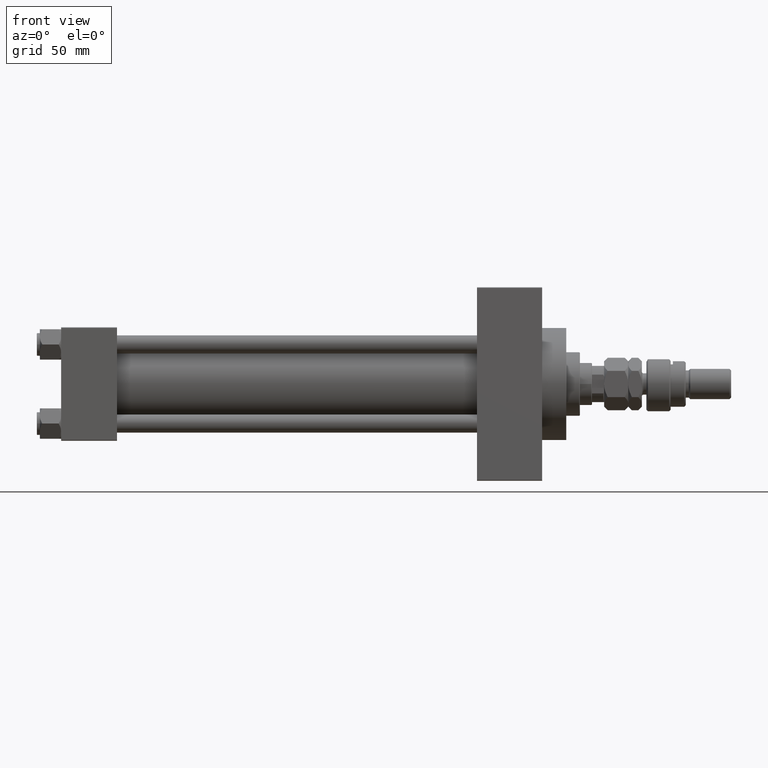
[diagram: clean part render]
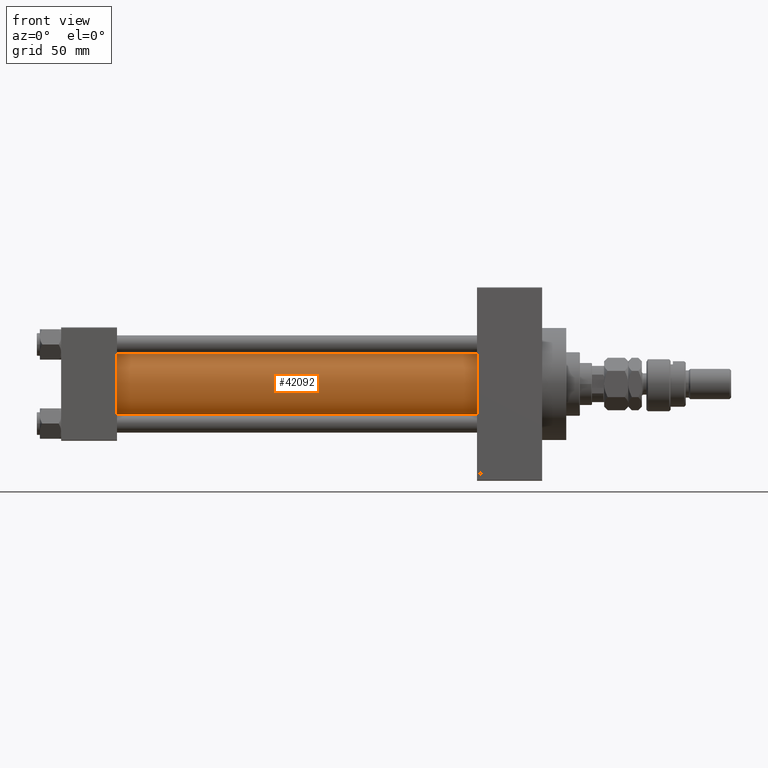
[diagram: same view with one face highlighted and labeled with its STEP entity id]
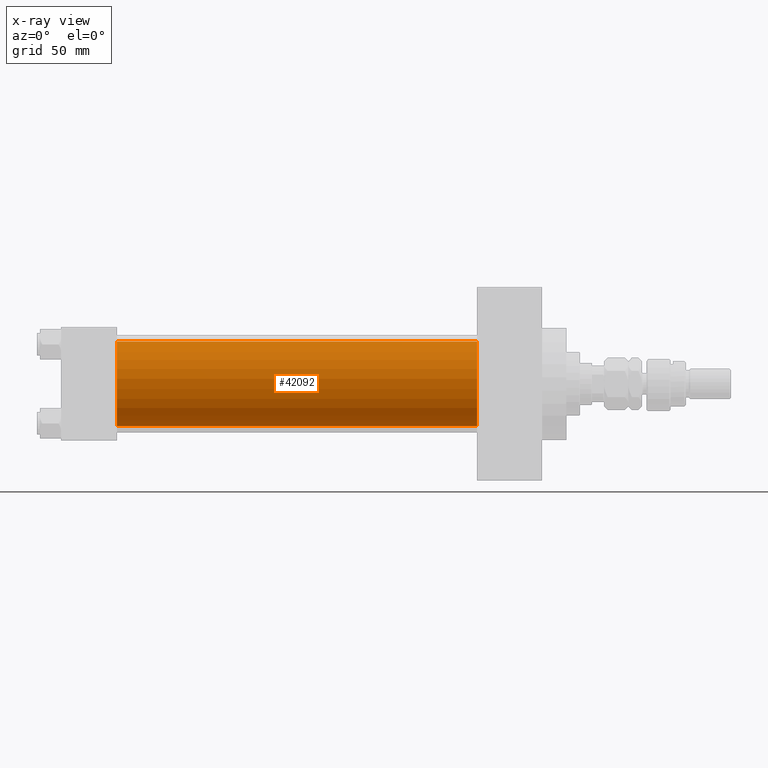
[diagram: x-ray of the same camera — body ghosted, the highlighted face saturated]
A machine part, front view. The second image highlights one B-rep face of the part: STEP entity #42092.
The next image is the same camera in x-ray: the body ghosted, the highlighted face saturated — about 0% of this face is hidden behind the body in this view.
In plain terms, the highlighted cylindrical surface (partial cylindrical patch) has radius 28 mm, axis along (-1, -0, -0).
Its self-contained STEP definition (entity closure, byte-faithful):
#1734 = AXIS2_PLACEMENT_3D ( 'NONE', #19188, #35322, #15211 ) ;
#2998 = CYLINDRICAL_SURFACE ( 'NONE', #1734, 28.00000000000000000 ) ;
#3715 = VECTOR ( 'NONE', #43896, 1000.000000000000000 ) ;
#4535 = LINE ( 'NONE', #24694, #23617 ) ;
#4807 = DIRECTION ( 'NONE',  ( 0.000000000000000000, 0.000000000000000000, -1.000000000000000000 ) ) ;
#6260 = EDGE_CURVE ( 'NONE', #13639, #44829, #4535, .T. ) ;
#7622 = DIRECTION ( 'NONE',  ( 1.000000000000000000, -0.000000000000000000, 0.000000000000000000 ) ) ;
#7713 = DIRECTION ( 'NONE',  ( -1.000000000000000000, -0.000000000000000000, -0.000000000000000000 ) ) ;
#10957 = CIRCLE ( 'NONE', #22816, 28.00000000000000000 ) ;
#12401 = DIRECTION ( 'NONE',  ( 0.000000000000000000, 0.000000000000000000, 1.000000000000000000 ) ) ;
#12506 = DIRECTION ( 'NONE',  ( 1.000000000000000000, 0.000000000000000000, 0.000000000000000000 ) ) ;
#13639 = VERTEX_POINT ( 'NONE', #46751 ) ;
#14546 = LINE ( 'NONE', #35961, #3715 ) ;
#14940 = FACE_OUTER_BOUND ( 'NONE', #49140, .T. ) ;
#15180 = ORIENTED_EDGE ( 'NONE', *, *, #50266, .T. ) ;
#15211 = DIRECTION ( 'NONE',  ( 0.000000000000000000, 0.000000000000000000, 1.000000000000000000 ) ) ;
#17498 = ORIENTED_EDGE ( 'NONE', *, *, #37504, .F. ) ;
#19188 = CARTESIAN_POINT ( 'NONE',  ( 274.9999999999999432, -2.602085213965210642E-15, 0.000000000000000000 ) ) ;
#21356 = ORIENTED_EDGE ( 'NONE', *, *, #30555, .T. ) ;
#22816 = AXIS2_PLACEMENT_3D ( 'NONE', #24706, #12506, #4807 ) ;
#23617 = VECTOR ( 'NONE', #7713, 1000.000000000000000 ) ;
#24694 = CARTESIAN_POINT ( 'NONE',  ( 274.9999999999999432, 8.269258236473784371E-16, -28.00000000000000000 ) ) ;
#24706 = CARTESIAN_POINT ( 'NONE',  ( 274.9999999999999432, -2.602085213965210642E-15, 0.000000000000000000 ) ) ;
#28863 = VERTEX_POINT ( 'NONE', #41096 ) ;
#29526 = ORIENTED_EDGE ( 'NONE', *, *, #6260, .F. ) ;
#29533 = VERTEX_POINT ( 'NONE', #51487 ) ;
#30555 = EDGE_CURVE ( 'NONE', #29533, #44829, #31006, .T. ) ;
#31006 = CIRCLE ( 'NONE', #50398, 28.00000000000000000 ) ;
#35322 = DIRECTION ( 'NONE',  ( -1.000000000000000000, -0.000000000000000000, -0.000000000000000000 ) ) ;
#35961 = CARTESIAN_POINT ( 'NONE',  ( 274.9999999999999432, -2.602085213965210642E-15, 28.00000000000000000 ) ) ;
#36496 = CARTESIAN_POINT ( 'NONE',  ( 37.00000000000000711, -2.602085213965210642E-15, 0.000000000000000000 ) ) ;
#37504 = EDGE_CURVE ( 'NONE', #28863, #13639, #10957, .T. ) ;
#41096 = CARTESIAN_POINT ( 'NONE',  ( 274.9999999999999432, -2.602085213965210642E-15, 28.00000000000000000 ) ) ;
#42092 = ADVANCED_FACE ( 'NONE', ( #14940 ), #2998, .T. ) ;
#43896 = DIRECTION ( 'NONE',  ( -1.000000000000000000, -0.000000000000000000, -0.000000000000000000 ) ) ;
#44829 = VERTEX_POINT ( 'NONE', #50810 ) ;
#46751 = CARTESIAN_POINT ( 'NONE',  ( 274.9999999999999432, 8.269258236473784371E-16, -28.00000000000000000 ) ) ;
#49140 = EDGE_LOOP ( 'NONE', ( #29526, #17498, #15180, #21356 ) ) ;
#50266 = EDGE_CURVE ( 'NONE', #28863, #29533, #14546, .T. ) ;
#50398 = AXIS2_PLACEMENT_3D ( 'NONE', #36496, #7622, #12401 ) ;
#50810 = CARTESIAN_POINT ( 'NONE',  ( 37.00000000000000711, 8.269258236473784371E-16, -28.00000000000000000 ) ) ;
#51487 = CARTESIAN_POINT ( 'NONE',  ( 37.00000000000000711, -2.602085213965210642E-15, 28.00000000000000000 ) ) ;